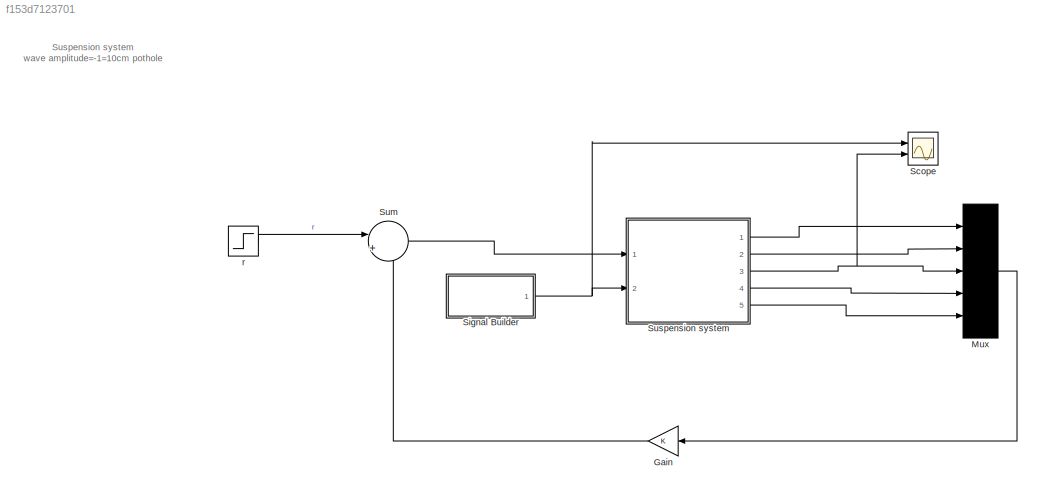
MODEL slx_f153d7123701
KIND model
CONFIG AbsTol = auto
CONFIG EnableMultiTasking = off
CONFIG FixedStep = auto
CONFIG MaxStep = auto
CONFIG MinStep = auto
CONFIG PostLoadFcn = m1=2500;\nm2=320;\nk1=80000;\nk2=500000;\nb1=350;\nb2=15020;\nK =[0 2.3e6 5e8 0 8e6];
CONFIG RelTol = 1e-3
CONFIG SampleTimeConstraint = Unconstrained
CONFIG SolverName = ode45
CONFIG StartTime = 0.0
CONFIG StopTime = 10
BLOCK [Gain] Gain
  Gain = K
  Multiplication = Matrix(K*u)
  NameLocation = top
BLOCK [Mux] Mux
  DisplayOption = bar
  Inputs = 5
  Ports = [5, 1]
BLOCK [Scope] Scope
  Floating = off
  NumInputPorts = 2
  Ports = [2]
  ScopeSpecificationString = Simulink.scopes.TimeScopeBlockCfg('CurrentConfiguration', extmgr.ConfigurationSet(extmgr.Configuration('Core','General UI',true),extmgr.Configuration('Core','Source UI',true),extmgr.Configuration('Sources','WiredSimulink',true),extmgr.Configuration('Visuals','Time Domain',true,'SerializedDisplays',{struct('MinYLimReal','-1.13625','MaxYLimReal','0.12625','YLabelReal','','MinYLimMag','0.00000','MaxY...<+2040ch>
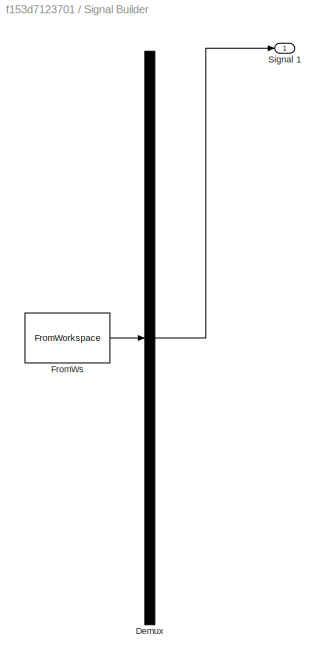
BLOCK [SubSystem] Signal Builder
  ClipboardFcn = sigbuilder_block('clipboard');
  CloseFcn = sigbuilder_block('close');
  ContinueFcn = sigbuilder_block('continue');
  CopyFcn = sigbuilder_block('copy');
  DeleteFcn = sigbuilder_block('delete');
  LoadFcn = sigbuilder_block('load');
  MaskHideContents = on
  ModelCloseFcn = sigbuilder_block('modelClose');
  NameChangeFcn = sigbuilder_block('namechange');
  OpenFcn = sigbuilder_block('open',[252 72 550.8 400.2 ]);
  PauseFcn = sigbuilder_block('pause');
  Ports = [0, 1]
  PreSaveFcn = sigbuilder_block('preSave');
  RequestExecContextInheritance = off
  StartFcn = sigbuilder_block('start');
  StopFcn = sigbuilder_block('stop');
  Tag = STV Subsys
BLOCK [Demux] Signal Builder/Demux
  DisplayOption = none
  Outputs = 1
  Ports = [1, 1]
  Tag = STV Demux
BLOCK [FromWorkspace] Signal Builder/FromWs
  Tag = STV FromWs
  VariableName = tuvar
BLOCK [Outport] Signal Builder/Signal 1
  Tag = STV Outport
BLOCK [Sum] Sum
  Inputs = |+-
  Ports = [2, 1]
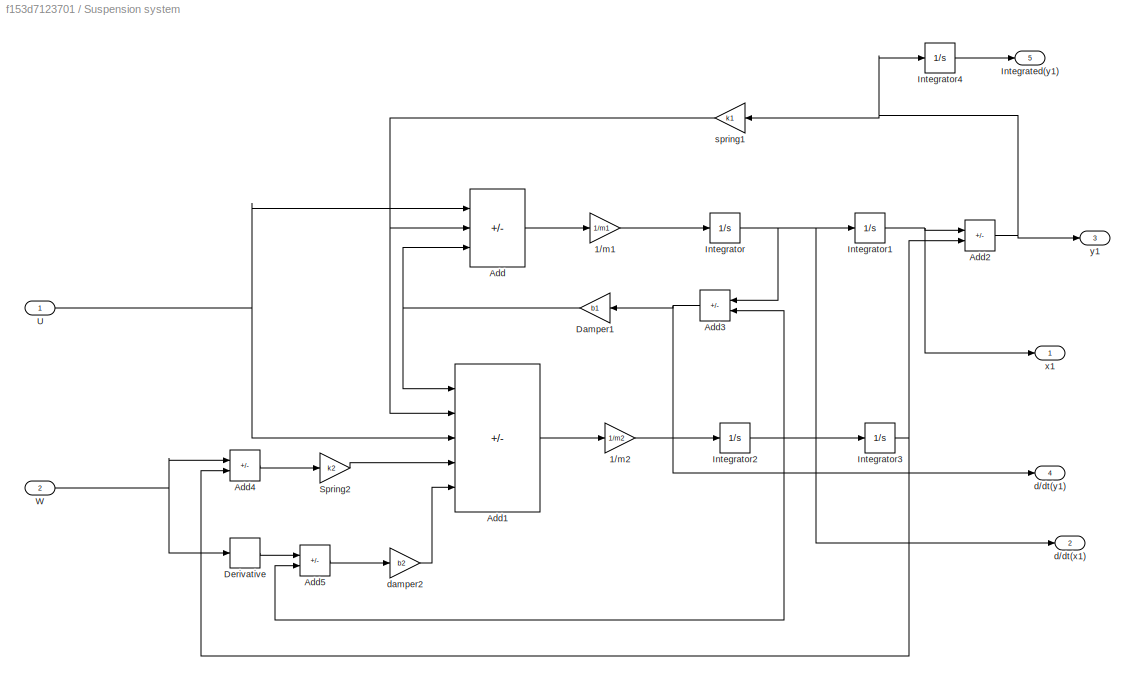
BLOCK [SubSystem] Suspension system
  Ports = [2, 5]
  RequestExecContextInheritance = off
BLOCK [Gain] Suspension system/1//m1
  Gain = 1/m1
BLOCK [Gain] Suspension system/1//m2
  Gain = 1/m2
BLOCK [Sum] Suspension system/Add
  IconShape = rectangular
  Inputs = +--
  Ports = [3, 1]
BLOCK [Sum] Suspension system/Add1
  IconShape = rectangular
  Inputs = ++-++
  Ports = [5, 1]
BLOCK [Sum] Suspension system/Add2
  IconShape = rectangular
  Inputs = +-
  Ports = [2, 1]
BLOCK [Sum] Suspension system/Add3
  IconShape = rectangular
  Inputs = +-
  NameLocation = top
  Ports = [2, 1]
BLOCK [Sum] Suspension system/Add4
  IconShape = rectangular
  Inputs = +-
  Ports = [2, 1]
BLOCK [Sum] Suspension system/Add5
  IconShape = rectangular
  Inputs = +-
  Ports = [2, 1]
BLOCK [Gain] Suspension system/Damper1
  Gain = b1
  NameLocation = top
BLOCK [Derivative] Suspension system/Derivative
BLOCK [Outport] Suspension system/Integrated(y1)
  Port = 5
BLOCK [Integrator] Suspension system/Integrator
  Ports = [1, 1]
BLOCK [Integrator] Suspension system/Integrator1
  Ports = [1, 1]
BLOCK [Integrator] Suspension system/Integrator2
  Ports = [1, 1]
BLOCK [Integrator] Suspension system/Integrator3
  Ports = [1, 1]
BLOCK [Integrator] Suspension system/Integrator4
  Ports = [1, 1]
BLOCK [Gain] Suspension system/Spring2
  Gain = k2
BLOCK [Inport] Suspension system/U
BLOCK [Inport] Suspension system/W
  Port = 2
BLOCK [Outport] Suspension system/d//dt(x1)
  Port = 2
BLOCK [Outport] Suspension system/d//dt(y1)
  Port = 4
BLOCK [Gain] Suspension system/damper2
  Gain = b2
BLOCK [Gain] Suspension system/spring1
  Gain = k1
  NameLocation = top
BLOCK [Outport] Suspension system/x1
BLOCK [Outport] Suspension system/y1
  Port = 3
BLOCK [Step] r
  After = 0
  SampleTime = 0
  Time = 0
ANNOTATION (root): Suspension system wave amplitude=-1=10cm pothole
LINE Gain:1 -> Sum:2
LINE Mux:1 -> Gain:1
NET Signal Builder:1 -> Scope:1, Suspension system:2
LINE Sum:1 -> Suspension system:1
LINE Suspension system/1//m1:1 -> Suspension system/Integrator:1
LINE Suspension system/1//m2:1 -> Suspension system/Integrator2:1
LINE Suspension system/Add1:1 -> Suspension system/1//m2:1
NET Suspension system/Add2:1 -> Suspension system/Integrator4:1, Suspension system/spring1:1, Suspension system/y1:1
NET Suspension system/Add3:1 -> Suspension system/Damper1:1, Suspension system/d//dt(y1):1
LINE Suspension system/Add4:1 -> Suspension system/Spring2:1
LINE Suspension system/Add5:1 -> Suspension system/damper2:1
LINE Suspension system/Add:1 -> Suspension system/1//m1:1
NET Suspension system/Damper1:1 -> Suspension system/Add1:1, Suspension system/Add:3
LINE Suspension system/Derivative:1 -> Suspension system/Add5:1
NET Suspension system/Integrator1:1 -> Suspension system/Add2:1, Suspension system/x1:1
NET Suspension system/Integrator2:1 -> Suspension system/Add3:2, Suspension system/Add5:2, Suspension system/Integrator3:1
NET Suspension system/Integrator3:1 -> Suspension system/Add2:2, Suspension system/Add4:2
LINE Suspension system/Integrator4:1 -> Suspension system/Integrated(y1):1
NET Suspension system/Integrator:1 -> Suspension system/Add3:1, Suspension system/Integrator1:1, Suspension system/d//dt(x1):1
LINE Suspension system/Spring2:1 -> Suspension system/Add1:4
NET Suspension system/U:1 -> Suspension system/Add1:3, Suspension system/Add:1
NET Suspension system/W:1 -> Suspension system/Add4:1, Suspension system/Derivative:1
LINE Suspension system/damper2:1 -> Suspension system/Add1:5
NET Suspension system/spring1:1 -> Suspension system/Add1:2, Suspension system/Add:2
LINE Suspension system:1 -> Mux:1
LINE Suspension system:2 -> Mux:2
NET Suspension system:3 -> Mux:3, Scope:2
LINE Suspension system:4 -> Mux:4
LINE Suspension system:5 -> Mux:5
LINE r:1 -> Sum:1
note: NET lines group one-source signal fan-out (src -> all destinations, sorted); 1:1 wires keep LINE
